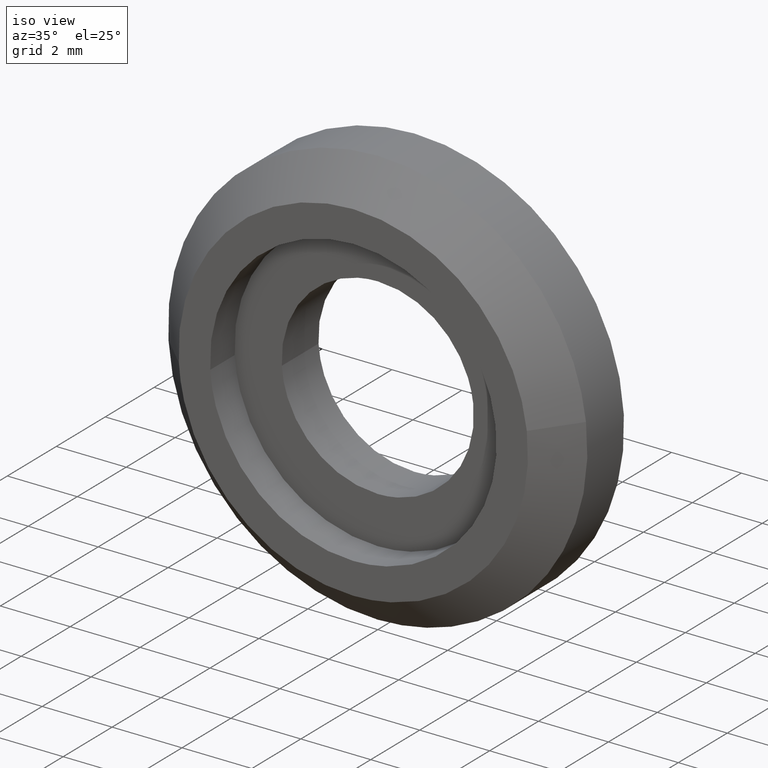
[diagram: clean part render]
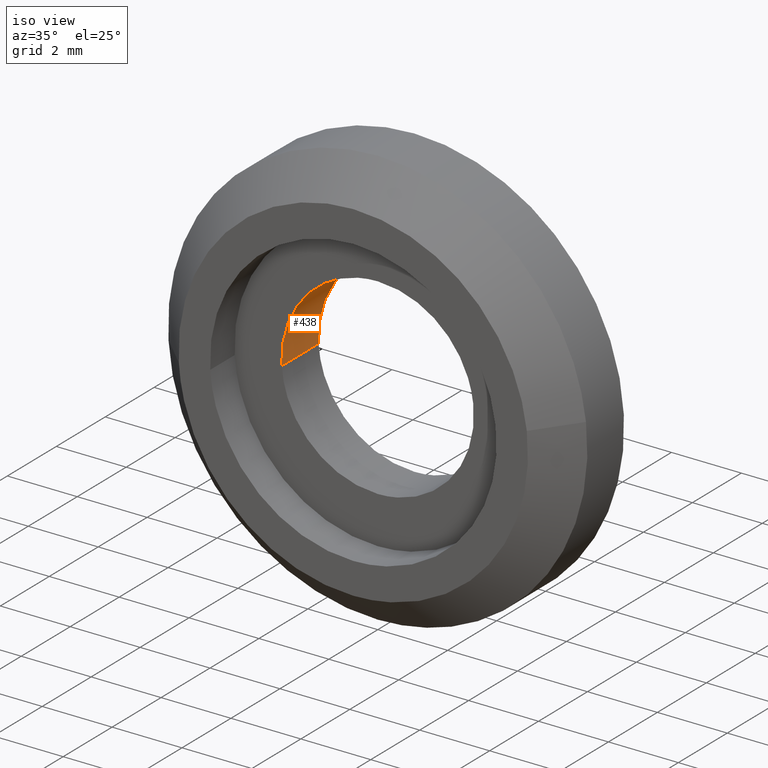
[diagram: same view with one face highlighted and labeled with its STEP entity id]
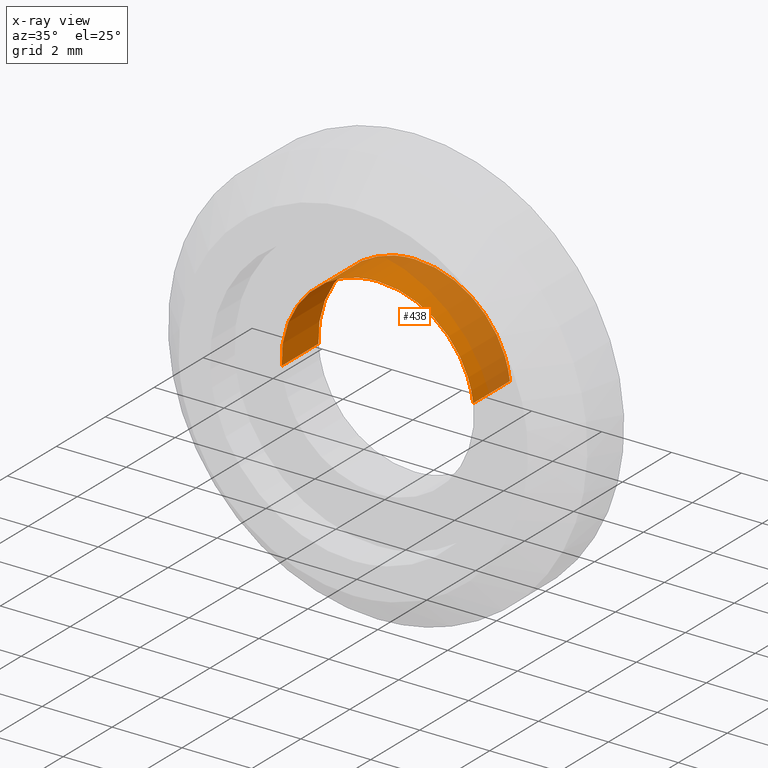
[diagram: x-ray of the same camera — body ghosted, the highlighted face saturated]
A machine part, iso view. The second image highlights one B-rep face of the part: STEP entity #438.
The next image is the same camera in x-ray: the body ghosted, the highlighted face saturated — about 43% of this face is hidden behind the body in this view.
In plain terms, the highlighted face is a freeform B-spline surface patch.
Its self-contained STEP definition (entity closure, byte-faithful):
#271=CARTESIAN_POINT('',(2.730776685649423,1.500000000000011,0.324590038504644));
#272=VERTEX_POINT('',#271);
#290=CARTESIAN_POINT('',(-2.744870953723958,1.500000000000022,-0.167879264308188));
#291=VERTEX_POINT('',#290);
#305=CARTESIAN_POINT('',(-2.744870950539090,3.469447E-017,-0.167879316382936));
#306=VERTEX_POINT('',#305);
#307=CARTESIAN_POINT('',(-2.744870950539090,3.469447E-017,-0.167879316382936));
#308=CARTESIAN_POINT('',(-2.744870953723958,1.500000000000022,-0.167879264308188));
#309=QUASI_UNIFORM_CURVE('',1,(#307,#308),.UNSPECIFIED.,.F.,.U.);
#310=EDGE_CURVE('',#306,#291,#309,.T.);
#327=CARTESIAN_POINT('',(2.730776679625815,3.194357E-017,0.324590089181917));
#328=VERTEX_POINT('',#327);
#344=CARTESIAN_POINT('',(2.730776679625815,3.194357E-017,0.324590089181917));
#345=CARTESIAN_POINT('',(2.730776685649423,1.500000000000011,0.324590038504644));
#346=QUASI_UNIFORM_CURVE('',1,(#344,#345),.UNSPECIFIED.,.F.,.U.);
#347=EDGE_CURVE('',#328,#272,#346,.T.);
#352=CARTESIAN_POINT('',(-2.742557482287090,-0.037500000000000,-0.205704188055494));
#353=CARTESIAN_POINT('',(-2.743710778967167,-0.037500000000000,-0.186847954015175));
#354=CARTESIAN_POINT('',(-2.912754179380990,-0.037500000000000,2.576987211939278));
#355=CARTESIAN_POINT('',(-0.167883483720857,-0.037500000000000,2.744870695660134));
#356=CARTESIAN_POINT('',(2.424244599808628,-0.037500000000000,2.903412041014450));
#357=CARTESIAN_POINT('',(2.733071324263455,-0.037500000000000,0.305285486704895));
#358=CARTESIAN_POINT('',(2.735354115827338,-0.037500000000000,0.286080602831752));
#359=CARTESIAN_POINT('',(-2.742557482287090,1.538437500000000,-0.205704188055494));
#360=CARTESIAN_POINT('',(-2.743710778967167,1.538437500000001,-0.186847954015175));
#361=CARTESIAN_POINT('',(-2.912754179380990,1.538437500000001,2.576987211939278));
#362=CARTESIAN_POINT('',(-0.167883483720857,1.538437500000000,2.744870695660134));
#363=CARTESIAN_POINT('',(2.424244599808628,1.538437500000000,2.903412041014450));
#364=CARTESIAN_POINT('',(2.733071324263455,1.538437500000001,0.305285486704895));
#365=CARTESIAN_POINT('',(2.735354115827338,1.538437500000000,0.286080602831752));
#373=(BOUNDED_SURFACE()B_SPLINE_SURFACE(2,1,((#352,#359),(#353,#360),(#354,#361),(#355,#362),(#356,#363),(#357,#364),(#358,#365)),.UNSPECIFIED.,.F.,.F.,.U.)B_SPLINE_SURFACE_WITH_KNOTS((3,1,2,1,3),(2,2),(0.0,0.044647328788295,4.600996514892342,8.975091733552226,9.019748690098576),(0.0,1.0),.UNSPECIFIED.)GEOMETRIC_REPRESENTATION_ITEM()RATIONAL_B_SPLINE_SURFACE(((1.005740077990558,1.005740077990558),(1.002870038995279,1.002870038995279),(0.707106781186548,0.707106781186548),(1.0,1.0),(0.718822509939086,0.718822509939086),(0.980146806054853,0.980146806054853),(0.982787811314580,0.982787811314580)))REPRESENTATION_ITEM('')SURFACE());
#374=CARTESIAN_POINT('',(0.0,1.500000000000000,2.750000000000000));
#375=VERTEX_POINT('',#374);
#376=CARTESIAN_POINT('',(0.0,1.500000000000000,2.750000000000000));
#377=CARTESIAN_POINT('',(2.442483645460547,1.500000000000001,2.750000000000000));
#378=CARTESIAN_POINT('',(2.730776685649423,1.500000000000012,0.324590038504644));
#386=(BOUNDED_CURVE()B_SPLINE_CURVE(2,(#376,#377,#378),.UNSPECIFIED.,.F.,.U.)B_SPLINE_CURVE_WITH_KNOTS((3,3),(0.0,0.229562727678856),.UNSPECIFIED.)CURVE()GEOMETRIC_REPRESENTATION_ITEM()RATIONAL_B_SPLINE_CURVE((1.0,0.731050535082176,0.956027252358787))REPRESENTATION_ITEM(''));
#387=EDGE_CURVE('',#375,#272,#386,.T.);
#388=ORIENTED_EDGE('',*,*,#387,.T.);
#389=ORIENTED_EDGE('',*,*,#347,.F.);
#390=CARTESIAN_POINT('',(0.0,0.0,2.750000000000000));
#391=VERTEX_POINT('',#390);
#392=CARTESIAN_POINT('',(0.0,0.0,2.750000000000000));
#393=CARTESIAN_POINT('',(2.442483599814294,0.0,2.750000000000000));
#394=CARTESIAN_POINT('',(2.730776679625815,3.194357E-017,0.324590089181916));
#402=(BOUNDED_CURVE()B_SPLINE_CURVE(2,(#392,#393,#394),.UNSPECIFIED.,.F.,.U.)B_SPLINE_CURVE_WITH_KNOTS((3,3),(0.0,0.229562724542522),.UNSPECIFIED.)CURVE()GEOMETRIC_REPRESENTATION_ITEM()RATIONAL_B_SPLINE_CURVE((1.0,0.731050538756619,0.956027246211430))REPRESENTATION_ITEM(''));
#403=EDGE_CURVE('',#391,#328,#402,.T.);
#404=ORIENTED_EDGE('',*,*,#403,.F.);
#405=CARTESIAN_POINT('',(-2.744870950539089,3.469447E-017,-0.167879316382936));
#406=CARTESIAN_POINT('',(-2.750000000000000,0.0,-0.084018009559996));
#407=CARTESIAN_POINT('',(-2.750000000000000,0.0,0.0));
#408=CARTESIAN_POINT('',(-2.750000000000000,0.0,2.750000000000000));
#409=CARTESIAN_POINT('',(0.0,0.0,2.750000000000000));
#417=(BOUNDED_CURVE()B_SPLINE_CURVE(2,(#405,#406,#407,#408,#409),.UNSPECIFIED.,.F.,.U.)B_SPLINE_CURVE_WITH_KNOTS((3,2,3),(0.739333224207285,0.750000000000000,1.0),.UNSPECIFIED.)CURVE()GEOMETRIC_REPRESENTATION_ITEM()RATIONAL_B_SPLINE_CURVE((0.976072603115385,0.987503094814841,1.0,0.707106781186548,1.0))REPRESENTATION_ITEM(''));
#418=EDGE_CURVE('',#306,#391,#417,.T.);
#419=ORIENTED_EDGE('',*,*,#418,.F.);
#420=ORIENTED_EDGE('',*,*,#310,.T.);
#421=CARTESIAN_POINT('',(-2.744870953723959,1.500000000000022,-0.167879264308188));
#422=CARTESIAN_POINT('',(-2.750000000000000,1.500000000000000,-0.084017983449622));
#423=CARTESIAN_POINT('',(-2.750000000000000,1.500000000000000,0.0));
#424=CARTESIAN_POINT('',(-2.750000000000000,1.500000000000000,2.750000000000000));
#425=CARTESIAN_POINT('',(0.0,1.500000000000000,2.750000000000000));
#433=(BOUNDED_CURVE()B_SPLINE_CURVE(2,(#421,#422,#423,#424,#425),.UNSPECIFIED.,.F.,.U.)B_SPLINE_CURVE_WITH_KNOTS((3,2,3),(0.739333227480785,0.750000000000000,1.0),.UNSPECIFIED.)CURVE()GEOMETRIC_REPRESENTATION_ITEM()RATIONAL_B_SPLINE_CURVE((0.976072610131135,0.987503098649985,1.0,0.707106781186548,1.0))REPRESENTATION_ITEM(''));
#434=EDGE_CURVE('',#291,#375,#433,.T.);
#435=ORIENTED_EDGE('',*,*,#434,.T.);
#436=EDGE_LOOP('',(#388,#389,#404,#419,#420,#435));
#437=FACE_OUTER_BOUND('',#436,.T.);
#438=ADVANCED_FACE('',(#437),#373,.F.);